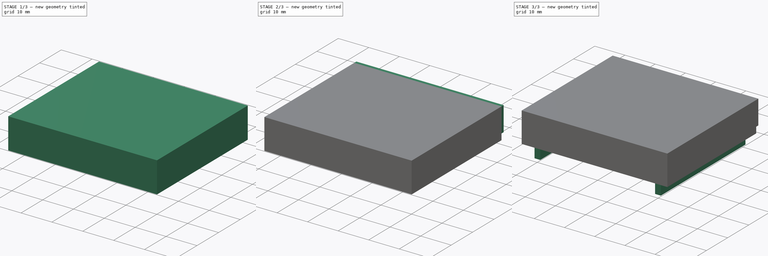
[diagram: build sequence overview — one tinted view per stage of 3, left to right]
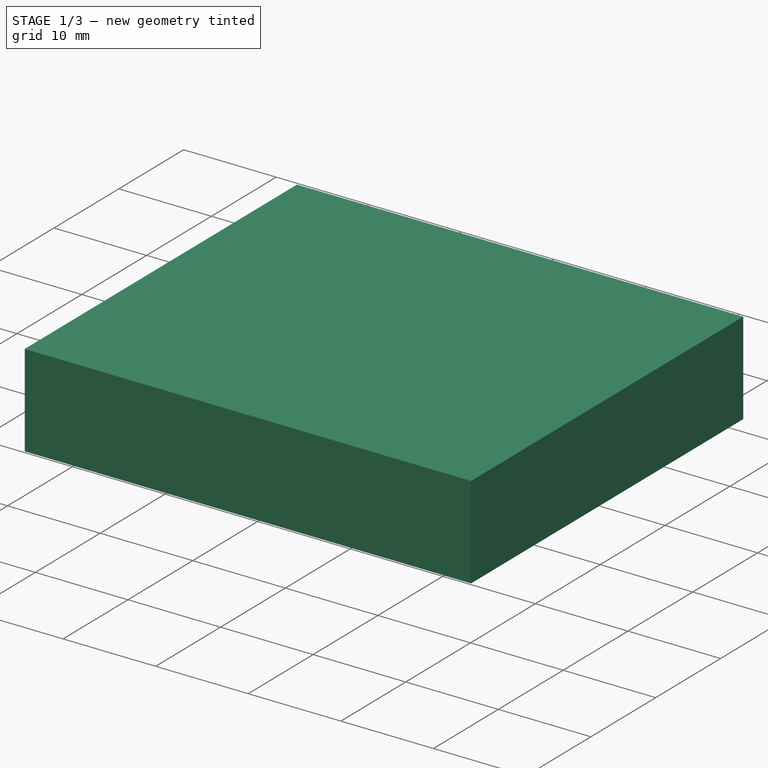
[diagram: stage 1 of 3 — iso view after this stage's code; geometry added in this stage tinted green]
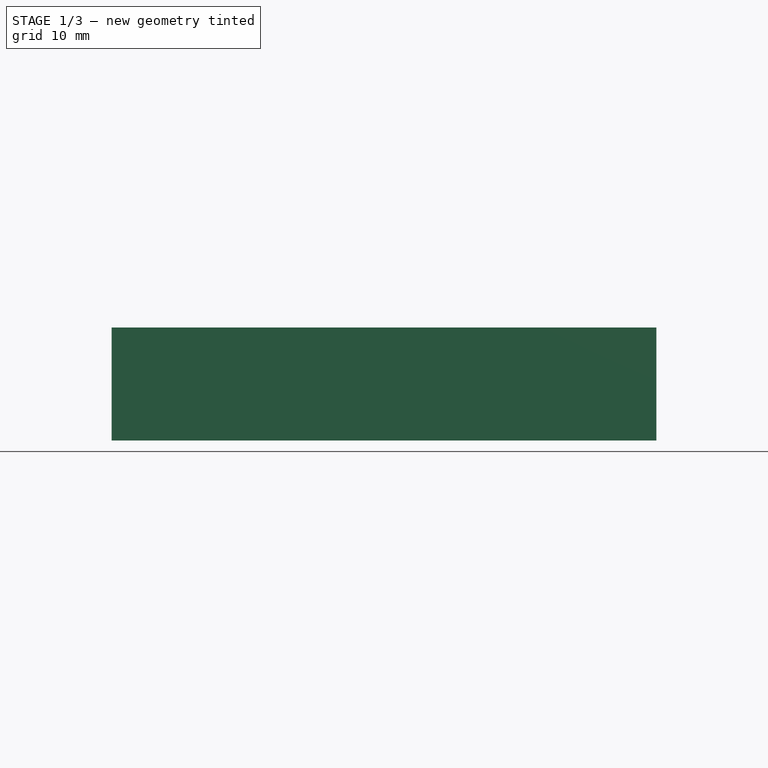
[diagram: stage 1 of 3 — front view after this stage's code; geometry added in this stage tinted green]
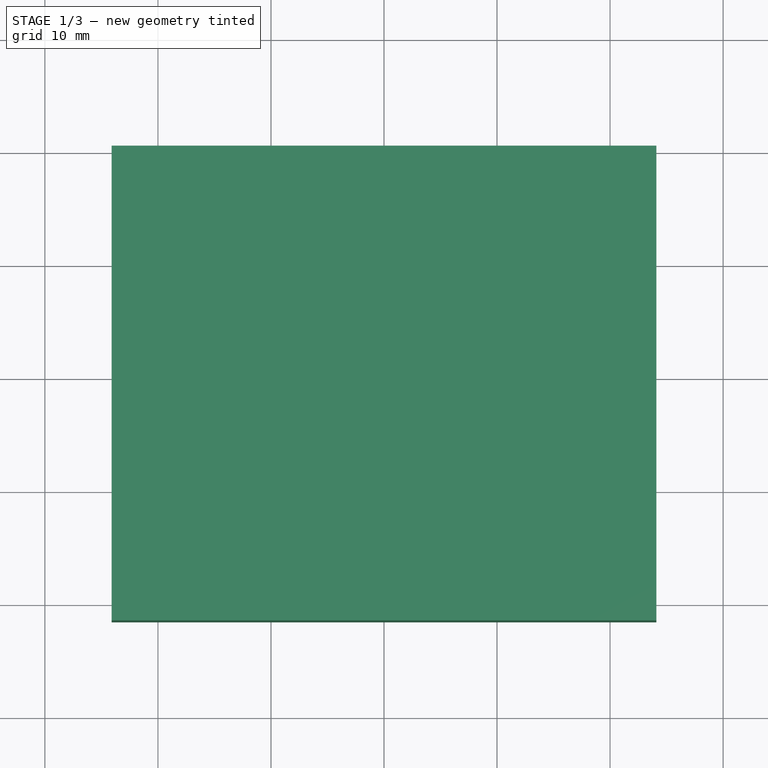
[diagram: stage 1 of 3 — top view after this stage's code; geometry added in this stage tinted green]
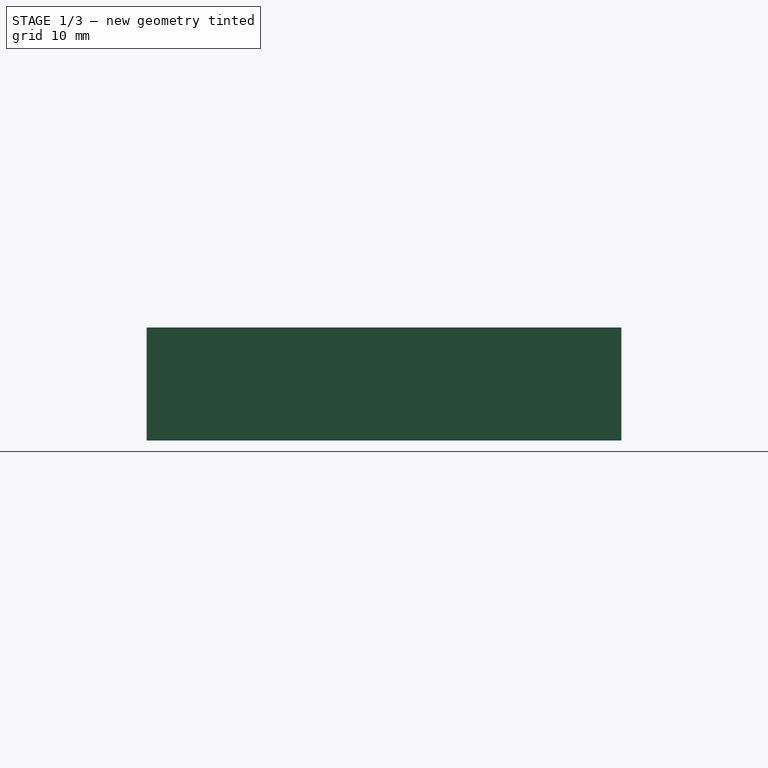
[diagram: stage 1 of 3 — right view after this stage's code; geometry added in this stage tinted green]
FCSTD DOCUMENT  (FreeCAD 0.16R4928 (Git))
Label: rpi_mote_base
License: CreativeCommons Attribution-ShareAlike
LicenseURL: http://creativecommons.org/licenses/by-sa/4.0/
objects: Sketcher::SketchObject×6, PartDesign::Pad×4, PartDesign::Pocket×2
note: 18 computed .brp shape members not serialized (recipe doc carries the construction recipe); baked Part::Feature solids carry a one-line shape summary decoded from their .brp

FEATURE [Sketcher::SketchObject] Sketch002
  Placement = pos=(0,0,0) rot=(-1,0,0;4.71239rad)
  sketch-geometry (13):
    g0: LineSegment StartX=-24.1 StartY=0 StartZ=0 EndX=-24.1 EndY=10 EndZ=0
    g1: LineSegment StartX=-24.1 StartY=10 StartZ=0 EndX=24.1 EndY=10 EndZ=0
    g2: LineSegment StartX=24.1 StartY=10 StartZ=0 EndX=24.1 EndY=0 EndZ=0
    g3: LineSegment [constr] StartX=24.1 StartY=0 StartZ=0 EndX=-24.1 EndY=0 EndZ=0
    g4: LineSegment StartX=24.1 StartY=0 StartZ=0 EndX=22.4 EndY=0 EndZ=0
    g5: LineSegment StartX=22.4 StartY=0 StartZ=0 EndX=22.4 EndY=0.7 EndZ=0
    g6: LineSegment StartX=22.4 StartY=0.7 StartZ=0 EndX=23.1 EndY=0.7 EndZ=0
    g7: LineSegment StartX=23.1 StartY=0.7 StartZ=0 EndX=23.1 EndY=9 EndZ=0
    g8: LineSegment StartX=23.1 StartY=9 StartZ=0 EndX=-23.1 EndY=9 EndZ=0
    g9: LineSegment StartX=-23.1 StartY=9 StartZ=0 EndX=-23.1 EndY=0.7 EndZ=0
    g10: LineSegment StartX=-23.1 StartY=0.7 StartZ=0 EndX=-22.4 EndY=0.7 EndZ=0
    g11: LineSegment StartX=-22.4 StartY=0.7 StartZ=0 EndX=-22.4 EndY=0 EndZ=0
    g12: LineSegment StartX=-22.4 StartY=0 StartZ=0 EndX=-24.1 EndY=0 EndZ=0
  constraints (40):
    c: Vertical(g0)
    c: Coincident(g0,g1)
    c: Horizontal(g1)
    c: Coincident(g1,g2)
    c: Vertical(g2)
    c: Coincident(g2,g3)
    c: Horizontal(g3)
    c: Coincident(g0,g3)
    c: Symmetric(g2,g0,g-2)
    c: Coincident(g2,g4)
    c: PointOnObject(g4,g3)
    c: Coincident(g4,g5)
    c: Vertical(g5)
    c: Coincident(g5,g6)
    c: Coincident(g6,g7)
    c: Coincident(g7,g8)
    c: Horizontal(g8)
    c: Coincident(g8,g9)
    c: Coincident(g9,g10)
    c: Coincident(g10,g11)
    c: Coincident(g11,g12)
    c: Coincident(g12,g0)
    c: Vertical(g9)
    c: Horizontal(g12)
    c: Horizontal(g6)
    c: Equal(g5,g11)
    c: Horizontal(g10)
    c: DistanceY(g5) = 0.7
    c: PointOnObject(g-1,g3)
    c: Vertical(g7)
    c: DistanceX(g6,g2) = 1
    c: Equal(g10,g6)
    c: Vertical(g11)
    c: Equal(g11,g5)
    c: DistanceX(g0,g9) = 1
    c: Equal(g6,g5)
    c: Equal(g10,g11)
    c: DistanceY(g7,g1) = 1
    c: DistanceY(g2) = -10
    c: DistanceX(g11,g4) = 44.8
FEATURE [PartDesign::Pad] Pad001
  Length = 41
  Length2 = 100
  Midplane = true
  Placement = pos=(0,0,0) rot=(-1,0,0;4.71239rad)
  Sketch = -> Sketch002
  Type = 0
FEATURE [Sketcher::SketchObject] Sketch003
  ExternalGeometry = -> [Pad001]
  Placement = pos=(0,-20.5,0) rot=(1,0,0;1.5708rad)
  Support = -> Pad001 [Face14]
  sketch-geometry (4):
    g0: LineSegment StartX=-24.1 StartY=10 StartZ=0 EndX=24.1 EndY=10 EndZ=0
    g1: LineSegment StartX=24.1 StartY=10 StartZ=0 EndX=24.1 EndY=0 EndZ=0
    g2: LineSegment StartX=24.1 StartY=0 StartZ=0 EndX=-24.1 EndY=0 EndZ=0
    g3: LineSegment StartX=-24.1 StartY=0 StartZ=0 EndX=-24.1 EndY=10 EndZ=0
  constraints (10):
    c: Coincident(g0,g1)
    c: Coincident(g1,g2)
    c: Coincident(g2,g3)
    c: Coincident(g3,g0)
    c: Horizontal(g0)
    c: Horizontal(g2)
    c: Vertical(g1)
    c: Vertical(g3)
    c: Coincident(g0,g-3)
    c: Coincident(g1,g-4)
FEATURE [PartDesign::Pad] Pad002
  Length = 1
  Length2 = 100
  Placement = pos=(0,0,0) rot=(-1,0,0;4.71239rad)
  Sketch = -> Sketch003
  Type = 0
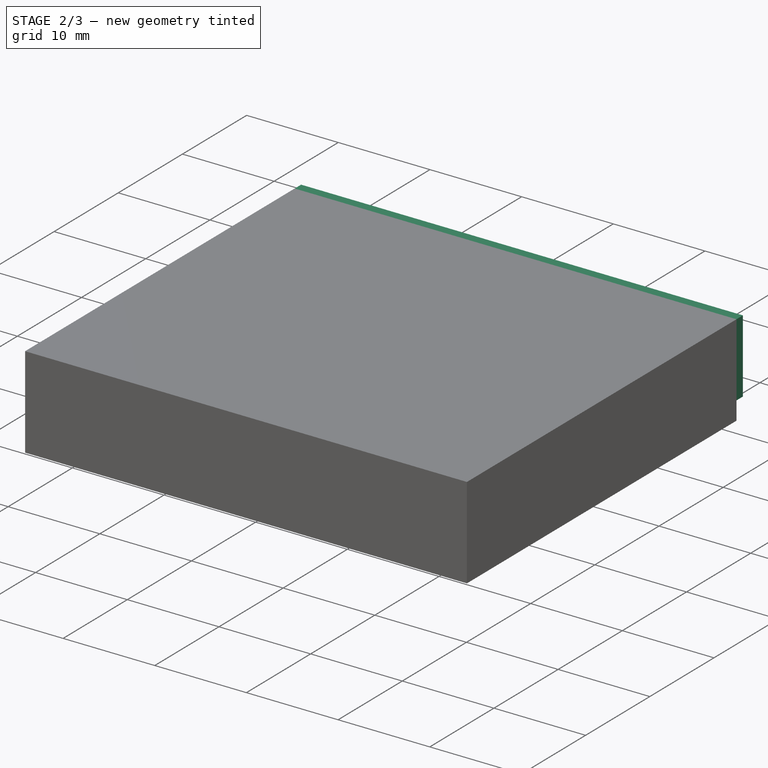
[diagram: stage 2 of 3 — iso view after this stage's code; geometry added in this stage tinted green]
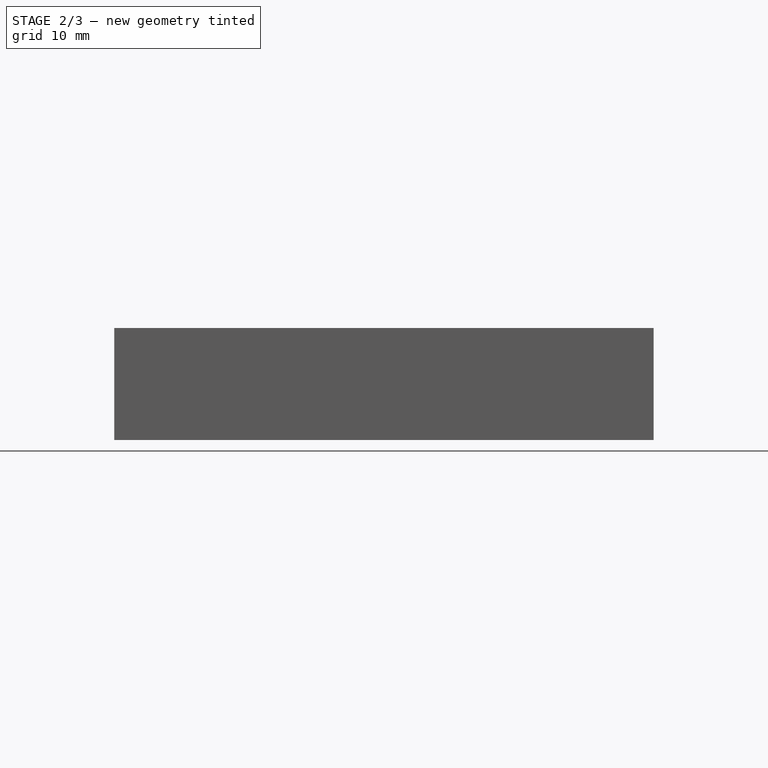
[diagram: stage 2 of 3 — front view after this stage's code; geometry added in this stage tinted green]
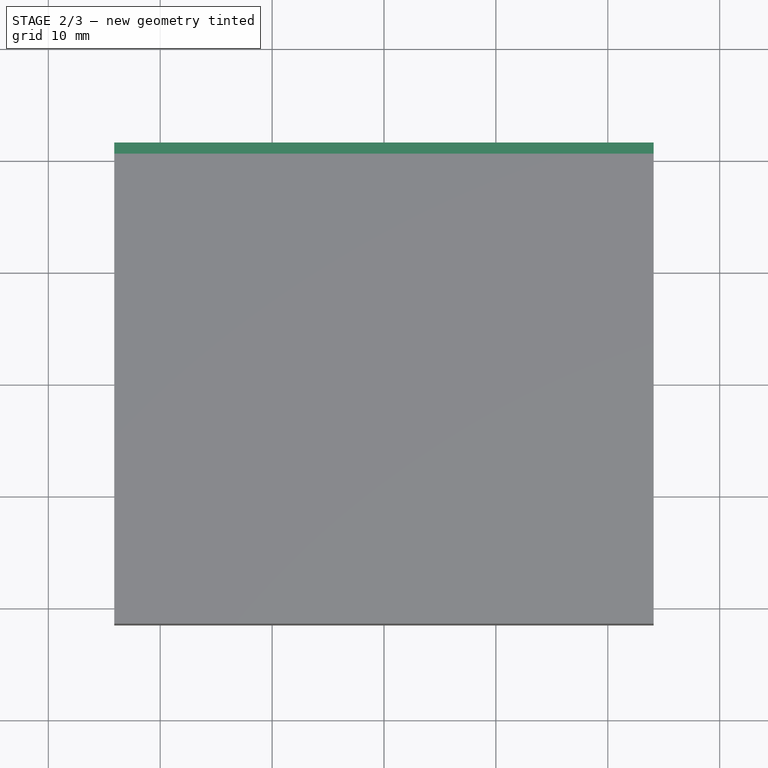
[diagram: stage 2 of 3 — top view after this stage's code; geometry added in this stage tinted green]
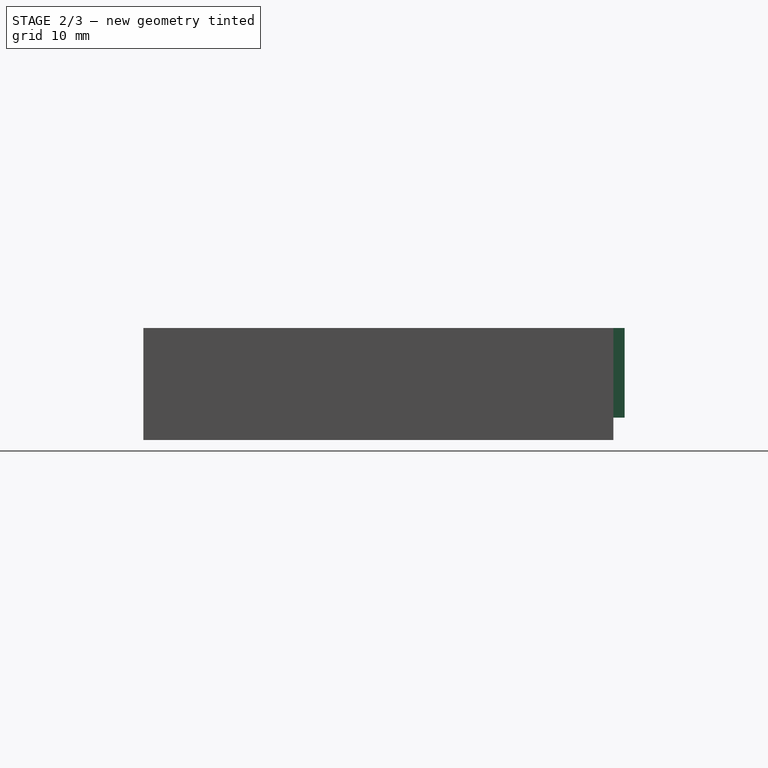
[diagram: stage 2 of 3 — right view after this stage's code; geometry added in this stage tinted green]
FEATURE [Sketcher::SketchObject] Sketch004
  ExternalGeometry = -> [Pad002]
  Placement = pos=(-24.1,0,0) rot=(0.707107,0,-0.707107;3.14159rad)
  Support = -> Pad002 [Face2]
  sketch-geometry (7):
    g0: LineSegment StartX=-8 StartY=16.5 StartZ=0 EndX=-2 EndY=16.5 EndZ=0
    g1: LineSegment StartX=-2 StartY=16.5 StartZ=0 EndX=-2 EndY=-8.5 EndZ=0
    g2: LineSegment StartX=-2 StartY=-8.5 StartZ=0 EndX=-8 EndY=-8.5 EndZ=0
    g3: LineSegment StartX=-8 StartY=-8.5 StartZ=0 EndX=-8 EndY=16.5 EndZ=0
    g4: GeomPoint [constr] X=-5 Y=21.5 Z=0
    g5: GeomPoint [constr] X=-5 Y=16.5 Z=0
    g6: LineSegment [constr] StartX=-5 StartY=21.5 StartZ=0 EndX=-5 EndY=16.5 EndZ=0
  constraints (18):
    c: Coincident(g0,g1)
    c: Coincident(g1,g2)
    c: Coincident(g2,g3)
    c: Coincident(g3,g0)
    c: Horizontal(g0)
    c: Horizontal(g2)
    c: Vertical(g1)
    c: Vertical(g3)
    c: PointOnObject(g4,g-3)
    c: Symmetric(g-3,g-3,g4)
    c: PointOnObject(g5,g0)
    c: Symmetric(g0,g0,g5)
    c: Coincident(g6,g4)
    c: Vertical(g6)
    c: Coincident(g5,g6)
    c: DistanceX(g0) = 6
    c: DistanceY(g3) = 25
    c: DistanceY(g6) = -5
FEATURE [PartDesign::Pocket] Pocket001
  Length = 5
  Placement = pos=(0,0,0) rot=(-1,0,0;4.71239rad)
  Sketch = -> Sketch004
  Type = 0
FEATURE [Sketcher::SketchObject] Sketch005
  ExternalGeometry = -> [Pocket001]
  Placement = pos=(0,20.5,0) rot=(-1,0,0;1.5708rad)
  Support = -> Pocket001 [Face6]
  sketch-geometry (4):
    g0: LineSegment StartX=-24.1 StartY=-2 StartZ=0 EndX=24.1 EndY=-2 EndZ=0
    g1: LineSegment StartX=24.1 StartY=-2 StartZ=0 EndX=24.1 EndY=-10 EndZ=0
    g2: LineSegment StartX=24.1 StartY=-10 StartZ=0 EndX=-24.1 EndY=-10 EndZ=0
    g3: LineSegment StartX=-24.1 StartY=-10 StartZ=0 EndX=-24.1 EndY=-2 EndZ=0
  constraints (11):
    c: Coincident(g0,g1)
    c: Coincident(g1,g2)
    c: Coincident(g2,g3)
    c: Horizontal(g0)
    c: Horizontal(g2)
    c: Vertical(g1)
    c: Vertical(g3)
    c: Coincident(g1,g-4)
    c: Coincident(g3,g0)
    c: PointOnObject(g0,g-3)
    c: DistanceY(g0,g1) = -8
FEATURE [PartDesign::Pad] Pad003
  Length = 1
  Length2 = 100
  Placement = pos=(0,0,0) rot=(-1,0,0;4.71239rad)
  Sketch = -> Sketch005
  Type = 0
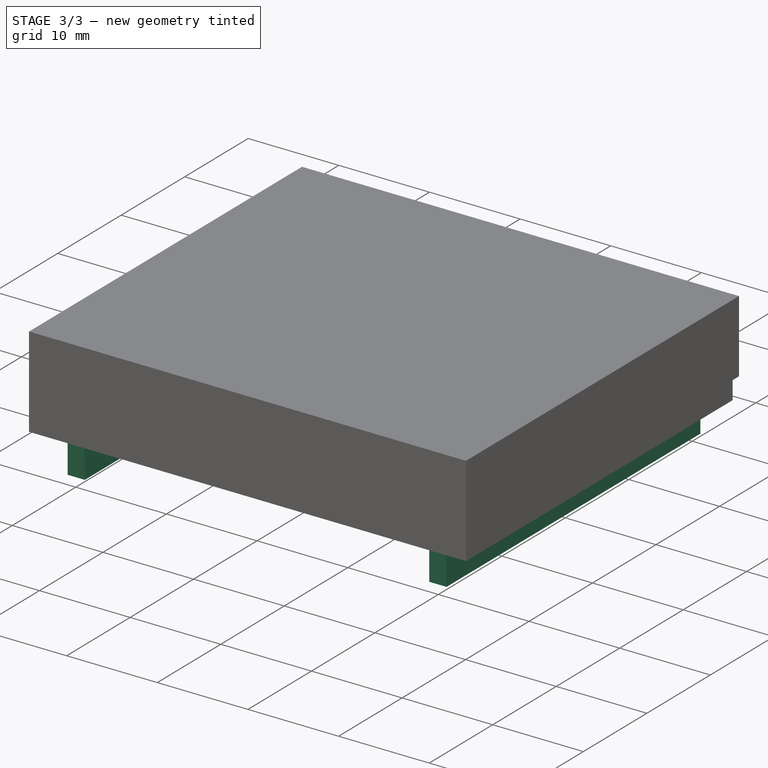
[diagram: stage 3 of 3 — iso view after this stage's code; geometry added in this stage tinted green]
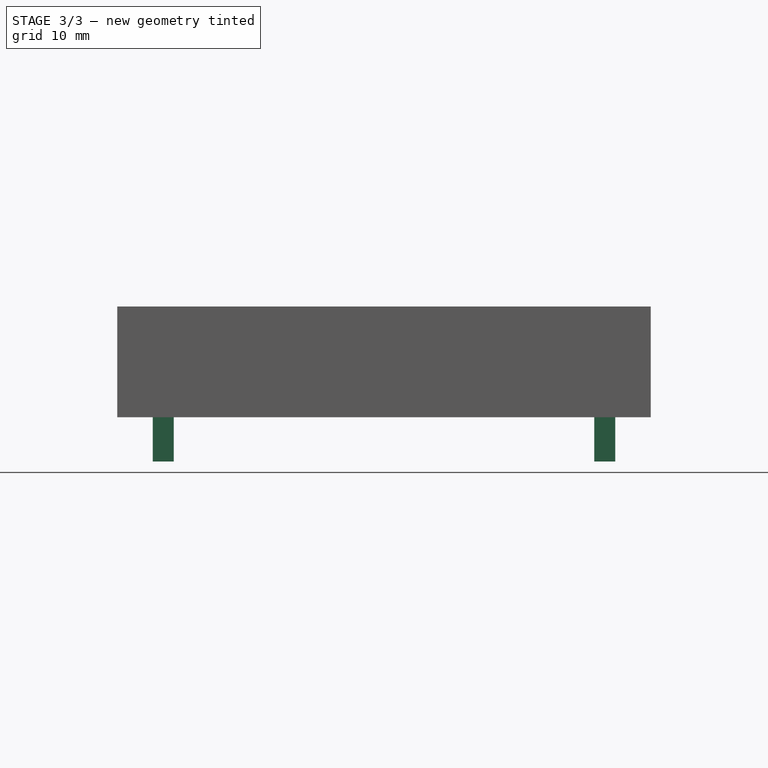
[diagram: stage 3 of 3 — front view after this stage's code; geometry added in this stage tinted green]
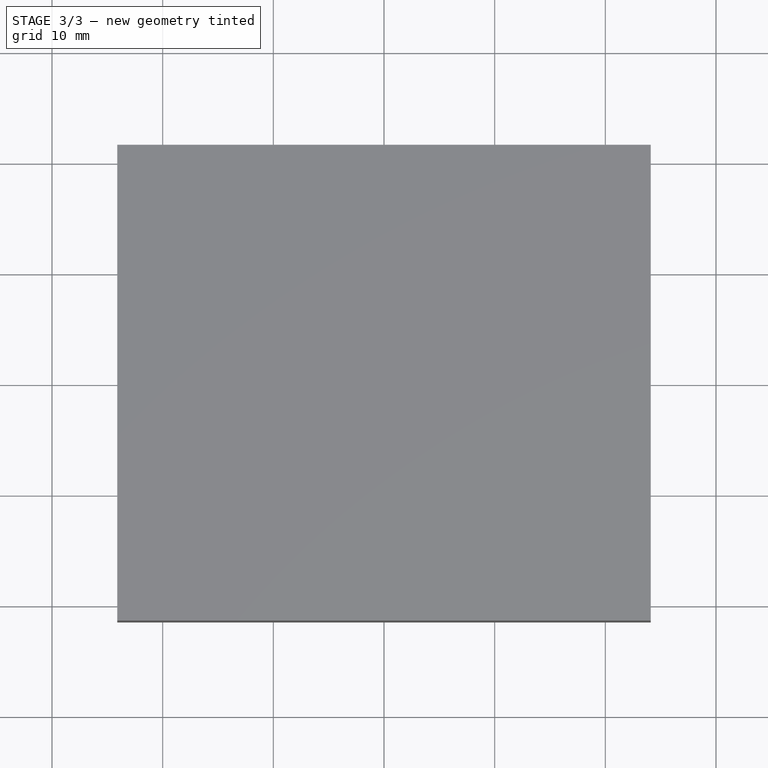
[diagram: stage 3 of 3 — top view after this stage's code; geometry added in this stage tinted green]
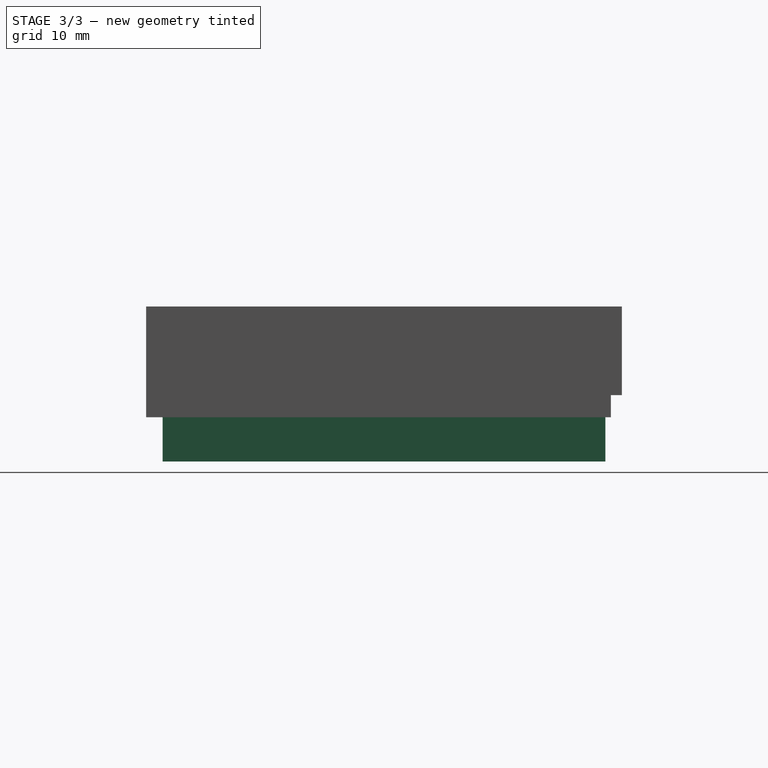
[diagram: stage 3 of 3 — right view after this stage's code; geometry added in this stage tinted green]
FEATURE [Sketcher::SketchObject] Sketch
  Placement = pos=(0,0,0) rot=(-1,0,0;4.71239rad)
  sketch-geometry (16):
    g0: LineSegment StartX=-22.4 StartY=0 StartZ=0 EndX=-20.9 EndY=0 EndZ=0
    g1: LineSegment StartX=-20.9 StartY=0 StartZ=0 EndX=-20.9 EndY=-4 EndZ=0
    g2: LineSegment StartX=-20.9 StartY=-4 StartZ=0 EndX=-19 EndY=-4 EndZ=0
    g3: LineSegment StartX=-19 StartY=-4 StartZ=0 EndX=-19 EndY=0 EndZ=0
    g4: LineSegment StartX=-19 StartY=0 StartZ=0 EndX=19 EndY=0 EndZ=0
    g5: LineSegment StartX=20.9 StartY=0 StartZ=0 EndX=20.9 EndY=-4 EndZ=0
    g6: LineSegment StartX=20.9 StartY=-4 StartZ=0 EndX=19 EndY=-4 EndZ=0
    g7: LineSegment StartX=19 StartY=-4 StartZ=0 EndX=19 EndY=0 EndZ=0
    g8: LineSegment StartX=20.9 StartY=0 StartZ=0 EndX=22.4 EndY=0 EndZ=0
    g9: LineSegment StartX=23.1 StartY=0.7 StartZ=0 EndX=23.1 EndY=1.5 EndZ=0
    g10: LineSegment StartX=23.1 StartY=1.5 StartZ=0 EndX=-23.1 EndY=1.5 EndZ=0
    g11: LineSegment StartX=-23.1 StartY=0.7 StartZ=0 EndX=-22.4 EndY=0.7 EndZ=0
    g12: LineSegment StartX=-22.4 StartY=0.7 StartZ=0 EndX=-22.4 EndY=0 EndZ=0
    g13: LineSegment StartX=-23.1 StartY=1.5 StartZ=0 EndX=-23.1 EndY=0.7 EndZ=0
    g14: LineSegment StartX=23.1 StartY=0.7 StartZ=0 EndX=22.4 EndY=0.7 EndZ=0
    g15: LineSegment StartX=22.4 StartY=0.7 StartZ=0 EndX=22.4 EndY=0 EndZ=0
  constraints (48):
    c: Horizontal(g0)
    c: Coincident(g0,g1)
    c: Vertical(g1)
    c: Coincident(g1,g2)
    c: Coincident(g2,g3)
    c: Coincident(g3,g4)
    c: Horizontal(g4)
    c: Coincident(g5,g6)
    c: Coincident(g6,g7)
    c: Horizontal(g8)
    c: Vertical(g9)
    c: Coincident(g9,g10)
    c: Horizontal(g10)
    c: Vertical(g5)
    c: Vertical(g7)
    c: Vertical(g3)
    c: Horizontal(g6)
    c: Horizontal(g2)
    c: Symmetric(g3,g4,g-1)
    c: Equal(g2,g6)
    c: Equal(g3,g5)
    c: Equal(g5,g7)
    c: Equal(g7,g1)
    c: DistanceX(g2) = 1.9
    c: Coincident(g7,g4)
    c: Coincident(g8,g5)
    c: DistanceY(g5) = -4
    c: Horizontal(g11)
    c: Coincident(g11,g12)
    c: Vertical(g12)
    c: Equal(g12,g11)
    c: DistanceX(g11) = 0.7
    c: Coincident(g13,g10)
    c: Coincident(g13,g11)
    c: Vertical(g13)
    c: DistanceY(g13) = -0.8
    c: Coincident(g12,g0)
    c: DistanceX(g0) = 1.5
    c: Horizontal(g14)
    c: Coincident(g14,g15)
    c: Vertical(g15)
    c: Coincident(g14,g9)
    c: Coincident(g8,g15)
    c: Equal(g15,g14)
    c: Equal(g14,g11)
    c: Equal(g13,g9)
    c: Equal(g8,g0)
    c: DistanceX(g2,g6) = 38
FEATURE [PartDesign::Pad] Pad
  Length = 40
  Length2 = 100
  Midplane = true
  Placement = pos=(0,0,0) rot=(-1,0,0;4.71239rad)
  Sketch = -> Sketch
  Type = 0
FEATURE [Sketcher::SketchObject] Sketch001
  Placement = pos=(0,0,1.5) rot=(0,0,1;3.14159rad)
  Support = -> Pad [Face2]
  sketch-geometry (4):
    g0: LineSegment StartX=-9 StartY=12.5 StartZ=0 EndX=9 EndY=12.5 EndZ=0
    g1: LineSegment StartX=9 StartY=12.5 StartZ=0 EndX=9 EndY=-12.5 EndZ=0
    g2: LineSegment StartX=9 StartY=-12.5 StartZ=0 EndX=-9 EndY=-12.5 EndZ=0
    g3: LineSegment StartX=-9 StartY=-12.5 StartZ=0 EndX=-9 EndY=12.5 EndZ=0
  constraints (11):
    c: Coincident(g0,g1)
    c: Coincident(g1,g2)
    c: Coincident(g2,g3)
    c: Coincident(g3,g0)
    c: Horizontal(g0)
    c: Horizontal(g2)
    c: Vertical(g1)
    c: Vertical(g3)
    c: Symmetric(g1,g0,g-1)
    c: DistanceX(g0) = 18
    c: DistanceY(g1) = -25
FEATURE [PartDesign::Pocket] Pocket
  Length = 5
  Placement = pos=(0,0,0) rot=(-1,0,0;4.71239rad)
  Sketch = -> Sketch001
  Type = 0
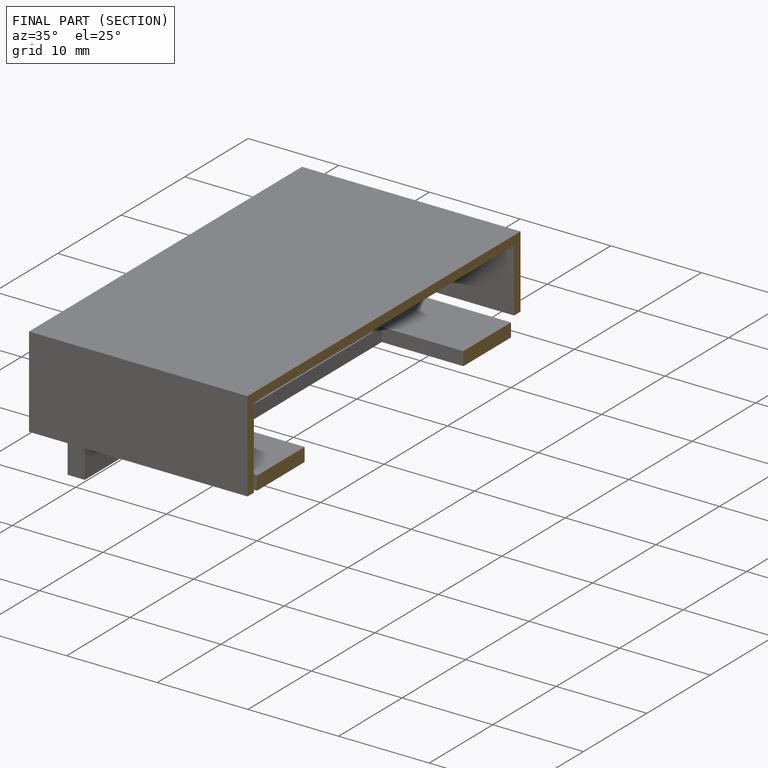
[diagram: finished part — half-section view (interior)]
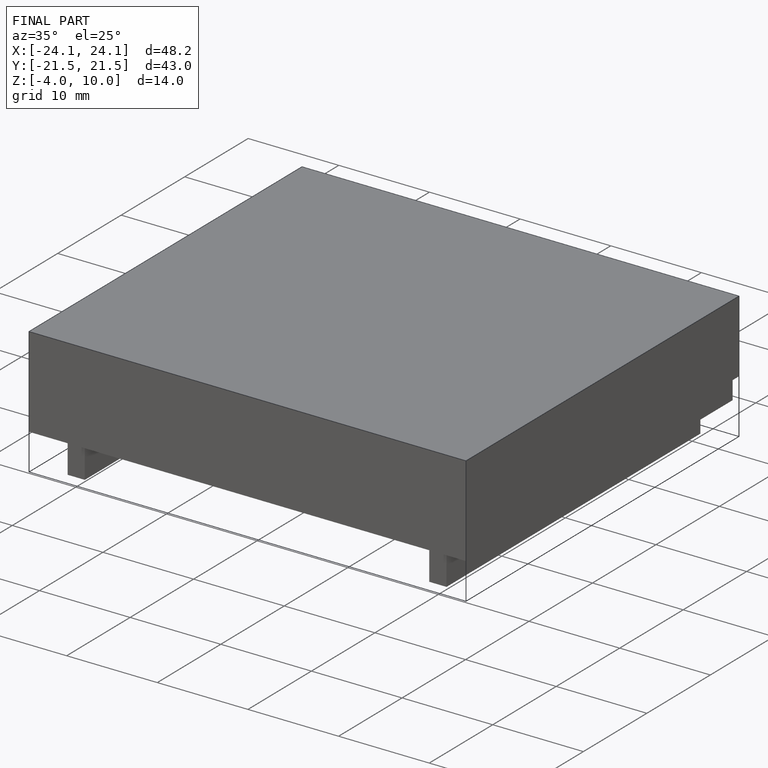
[diagram: finished part — iso view with bounding-box wireframe]
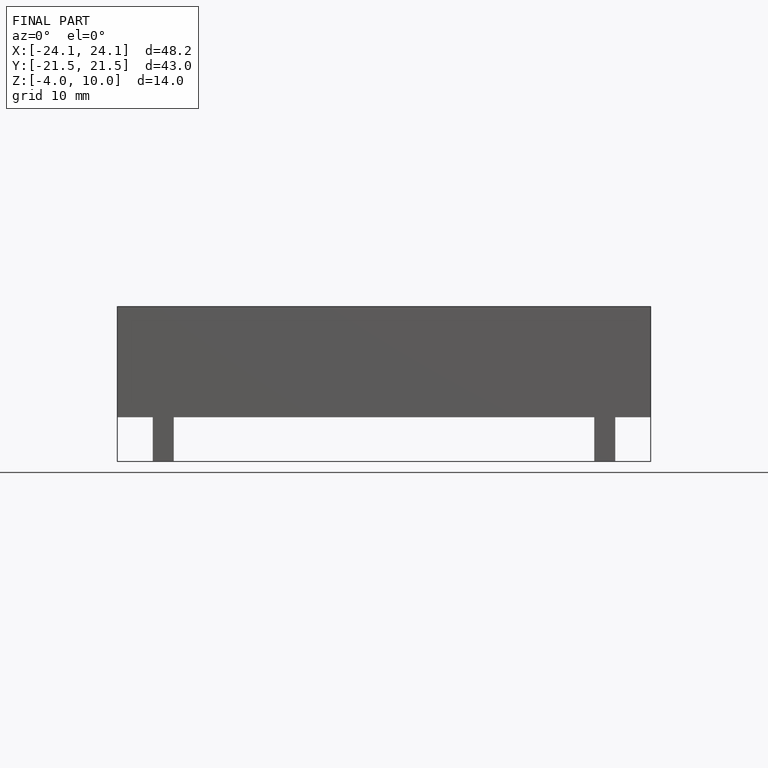
[diagram: finished part — front view with bounding-box wireframe]
